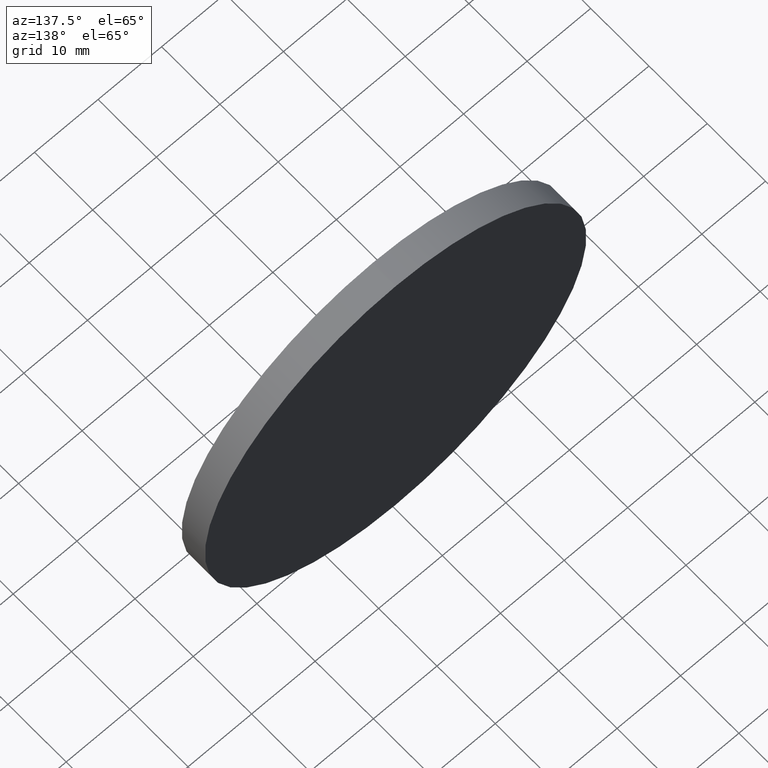
[diagram: clean part render]
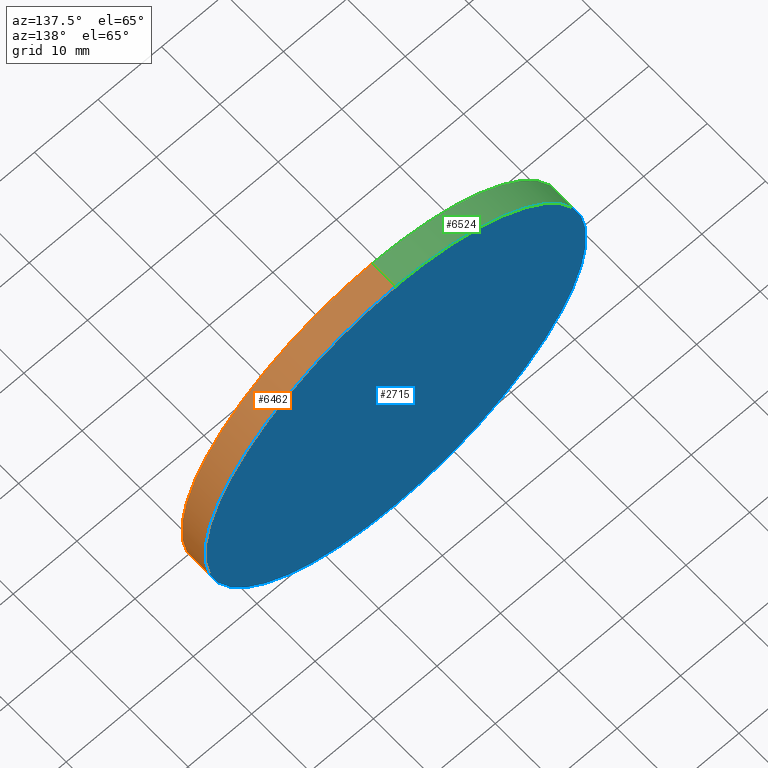
[diagram: same view with three faces highlighted in distinct colors, each labeled with its STEP entity id]
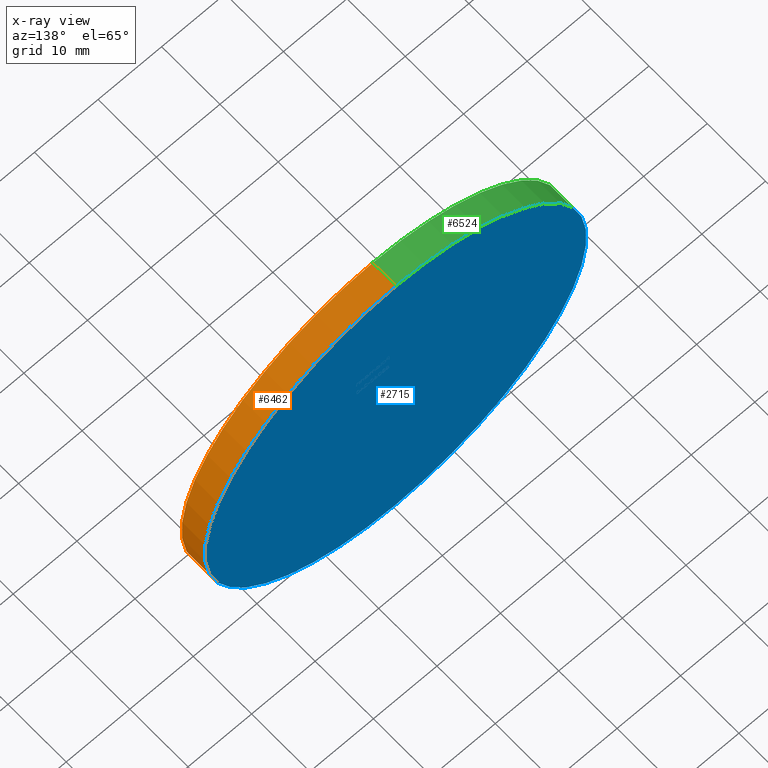
[diagram: x-ray of the same camera — body ghosted, the three highlighted faces saturated]
A machine part, auxiliary view with three faces highlighted in distinct colors.
The next image is the same camera in x-ray (body ghosted, the three faces saturated) — at least one of them is partly hidden behind the body in this view.
Their STEP definitions:

[orange] entity #6462 — the highlighted cylindrical surface (partial cylindrical patch) has radius 30 mm, axis along (-0, -1, -0).
#569 = CIRCLE ( 'NONE', #3895, 30.00000000000000000 ) ;
#644 = CARTESIAN_POINT ( 'NONE',  ( 0.000000000000000000, 2.000000000000000000, -30.00000000000000000 ) ) ;
#700 = VECTOR ( 'NONE', #786, 1000.000000000000000 ) ;
#719 = EDGE_CURVE ( 'NONE', #3265, #4205, #6534, .T. ) ;
#786 = DIRECTION ( 'NONE',  ( -0.000000000000000000, -1.000000000000000000, -0.000000000000000000 ) ) ;
#1074 = EDGE_CURVE ( 'NONE', #3265, #4392, #12571, .T. ) ;
#1540 = FACE_OUTER_BOUND ( 'NONE', #12253, .T. ) ;
#1952 = CARTESIAN_POINT ( 'NONE',  ( 3.673940397442059178E-15, 2.000000000000000000, 30.00000000000000000 ) ) ;
#2316 = CARTESIAN_POINT ( 'NONE',  ( 0.000000000000000000, 2.000000000000000000, 0.000000000000000000 ) ) ;
#2370 = LINE ( 'NONE', #644, #700 ) ;
#2438 = CARTESIAN_POINT ( 'NONE',  ( 0.000000000000000000, -2.000000000000000000, -30.00000000000000000 ) ) ;
#2491 = AXIS2_PLACEMENT_3D ( 'NONE', #2316, #9708, #5480 ) ;
#3265 = VERTEX_POINT ( 'NONE', #9702 ) ;
#3793 = DIRECTION ( 'NONE',  ( 0.000000000000000000, 0.000000000000000000, 1.000000000000000000 ) ) ;
#3895 = AXIS2_PLACEMENT_3D ( 'NONE', #10050, #7939, #3793 ) ;
#3897 = VECTOR ( 'NONE', #9262, 1000.000000000000000 ) ;
#4205 = VERTEX_POINT ( 'NONE', #12776 ) ;
#4335 = DIRECTION ( 'NONE',  ( 0.000000000000000000, 1.000000000000000000, 0.000000000000000000 ) ) ;
#4392 = VERTEX_POINT ( 'NONE', #12043 ) ;
#5290 = ORIENTED_EDGE ( 'NONE', *, *, #7449, .F. ) ;
#5412 = DIRECTION ( 'NONE',  ( 0.000000000000000000, 0.000000000000000000, 1.000000000000000000 ) ) ;
#5454 = EDGE_CURVE ( 'NONE', #4392, #11629, #569, .T. ) ;
#5480 = DIRECTION ( 'NONE',  ( 0.000000000000000000, 0.000000000000000000, -1.000000000000000000 ) ) ;
#6462 = ADVANCED_FACE ( 'NONE', ( #1540 ), #9887, .T. ) ;
#6534 = CIRCLE ( 'NONE', #9673, 30.00000000000000000 ) ;
#7305 = ORIENTED_EDGE ( 'NONE', *, *, #5454, .T. ) ;
#7449 = EDGE_CURVE ( 'NONE', #4205, #11629, #2370, .T. ) ;
#7542 = CARTESIAN_POINT ( 'NONE',  ( 0.000000000000000000, 2.000000000000000000, 0.000000000000000000 ) ) ;
#7939 = DIRECTION ( 'NONE',  ( 0.000000000000000000, 1.000000000000000000, 0.000000000000000000 ) ) ;
#9262 = DIRECTION ( 'NONE',  ( -0.000000000000000000, -1.000000000000000000, -0.000000000000000000 ) ) ;
#9673 = AXIS2_PLACEMENT_3D ( 'NONE', #7542, #4335, #5412 ) ;
#9702 = CARTESIAN_POINT ( 'NONE',  ( 3.673940397442059178E-15, 2.000000000000000000, 30.00000000000000000 ) ) ;
#9708 = DIRECTION ( 'NONE',  ( -0.000000000000000000, -1.000000000000000000, -0.000000000000000000 ) ) ;
#9887 = CYLINDRICAL_SURFACE ( 'NONE', #2491, 30.00000000000000000 ) ;
#10050 = CARTESIAN_POINT ( 'NONE',  ( 0.000000000000000000, -2.000000000000000000, 0.000000000000000000 ) ) ;
#11629 = VERTEX_POINT ( 'NONE', #2438 ) ;
#12043 = CARTESIAN_POINT ( 'NONE',  ( 3.673940397442059178E-15, -2.000000000000000000, 30.00000000000000000 ) ) ;
#12253 = EDGE_LOOP ( 'NONE', ( #13333, #12555, #7305, #5290 ) ) ;
#12555 = ORIENTED_EDGE ( 'NONE', *, *, #1074, .T. ) ;
#12571 = LINE ( 'NONE', #1952, #3897 ) ;
#12776 = CARTESIAN_POINT ( 'NONE',  ( 0.000000000000000000, 2.000000000000000000, -30.00000000000000000 ) ) ;
#13333 = ORIENTED_EDGE ( 'NONE', *, *, #719, .F. ) ;

[blue] entity #2715 — the highlighted planar face has unit normal (0, 1, 0).
#602 = ORIENTED_EDGE ( 'NONE', *, *, #11615, .T. ) ;
#719 = EDGE_CURVE ( 'NONE', #3265, #4205, #6534, .T. ) ;
#887 = DIRECTION ( 'NONE',  ( 0.000000000000000000, -0.000000000000000000, 1.000000000000000000 ) ) ;
#1539 = AXIS2_PLACEMENT_3D ( 'NONE', #10924, #10876, #7856 ) ;
#1964 = DIRECTION ( 'NONE',  ( 0.000000000000000000, 1.000000000000000000, 0.000000000000000000 ) ) ;
#2155 = CARTESIAN_POINT ( 'NONE',  ( 0.000000000000000000, 2.000000000000000000, 0.000000000000000000 ) ) ;
#2715 = ADVANCED_FACE ( 'NONE', ( #9630 ), #8393, .T. ) ;
#3265 = VERTEX_POINT ( 'NONE', #9702 ) ;
#3424 = CIRCLE ( 'NONE', #1539, 30.00000000000000000 ) ;
#4205 = VERTEX_POINT ( 'NONE', #12776 ) ;
#4335 = DIRECTION ( 'NONE',  ( 0.000000000000000000, 1.000000000000000000, 0.000000000000000000 ) ) ;
#5412 = DIRECTION ( 'NONE',  ( 0.000000000000000000, 0.000000000000000000, 1.000000000000000000 ) ) ;
#5913 = EDGE_LOOP ( 'NONE', ( #602, #12869 ) ) ;
#6534 = CIRCLE ( 'NONE', #9673, 30.00000000000000000 ) ;
#6544 = AXIS2_PLACEMENT_3D ( 'NONE', #2155, #1964, #887 ) ;
#7542 = CARTESIAN_POINT ( 'NONE',  ( 0.000000000000000000, 2.000000000000000000, 0.000000000000000000 ) ) ;
#7856 = DIRECTION ( 'NONE',  ( 0.000000000000000000, 0.000000000000000000, 1.000000000000000000 ) ) ;
#8393 = PLANE ( 'NONE',  #6544 ) ;
#9630 = FACE_OUTER_BOUND ( 'NONE', #5913, .T. ) ;
#9673 = AXIS2_PLACEMENT_3D ( 'NONE', #7542, #4335, #5412 ) ;
#9702 = CARTESIAN_POINT ( 'NONE',  ( 3.673940397442059178E-15, 2.000000000000000000, 30.00000000000000000 ) ) ;
#10876 = DIRECTION ( 'NONE',  ( 0.000000000000000000, 1.000000000000000000, 0.000000000000000000 ) ) ;
#10924 = CARTESIAN_POINT ( 'NONE',  ( 0.000000000000000000, 2.000000000000000000, 0.000000000000000000 ) ) ;
#11615 = EDGE_CURVE ( 'NONE', #4205, #3265, #3424, .T. ) ;
#12776 = CARTESIAN_POINT ( 'NONE',  ( 0.000000000000000000, 2.000000000000000000, -30.00000000000000000 ) ) ;
#12869 = ORIENTED_EDGE ( 'NONE', *, *, #719, .T. ) ;

[green] entity #6524 — the highlighted cylindrical surface (partial cylindrical patch) has radius 30 mm, axis along (-0, -1, -0).
#644 = CARTESIAN_POINT ( 'NONE',  ( 0.000000000000000000, 2.000000000000000000, -30.00000000000000000 ) ) ;
#700 = VECTOR ( 'NONE', #786, 1000.000000000000000 ) ;
#786 = DIRECTION ( 'NONE',  ( -0.000000000000000000, -1.000000000000000000, -0.000000000000000000 ) ) ;
#1074 = EDGE_CURVE ( 'NONE', #3265, #4392, #12571, .T. ) ;
#1193 = DIRECTION ( 'NONE',  ( -0.000000000000000000, -1.000000000000000000, -0.000000000000000000 ) ) ;
#1250 = AXIS2_PLACEMENT_3D ( 'NONE', #10748, #1193, #8515 ) ;
#1539 = AXIS2_PLACEMENT_3D ( 'NONE', #10924, #10876, #7856 ) ;
#1603 = ORIENTED_EDGE ( 'NONE', *, *, #1074, .F. ) ;
#1952 = CARTESIAN_POINT ( 'NONE',  ( 3.673940397442059178E-15, 2.000000000000000000, 30.00000000000000000 ) ) ;
#2370 = LINE ( 'NONE', #644, #700 ) ;
#2438 = CARTESIAN_POINT ( 'NONE',  ( 0.000000000000000000, -2.000000000000000000, -30.00000000000000000 ) ) ;
#2959 = EDGE_LOOP ( 'NONE', ( #1603, #5618, #7987, #11664 ) ) ;
#3190 = DIRECTION ( 'NONE',  ( 0.000000000000000000, 0.000000000000000000, 1.000000000000000000 ) ) ;
#3265 = VERTEX_POINT ( 'NONE', #9702 ) ;
#3369 = CARTESIAN_POINT ( 'NONE',  ( 0.000000000000000000, -2.000000000000000000, 0.000000000000000000 ) ) ;
#3424 = CIRCLE ( 'NONE', #1539, 30.00000000000000000 ) ;
#3897 = VECTOR ( 'NONE', #9262, 1000.000000000000000 ) ;
#4205 = VERTEX_POINT ( 'NONE', #12776 ) ;
#4392 = VERTEX_POINT ( 'NONE', #12043 ) ;
#5618 = ORIENTED_EDGE ( 'NONE', *, *, #11615, .F. ) ;
#5945 = EDGE_CURVE ( 'NONE', #11629, #4392, #6818, .T. ) ;
#6524 = ADVANCED_FACE ( 'NONE', ( #12681 ), #11543, .T. ) ;
#6818 = CIRCLE ( 'NONE', #10890, 30.00000000000000000 ) ;
#7449 = EDGE_CURVE ( 'NONE', #4205, #11629, #2370, .T. ) ;
#7856 = DIRECTION ( 'NONE',  ( 0.000000000000000000, 0.000000000000000000, 1.000000000000000000 ) ) ;
#7987 = ORIENTED_EDGE ( 'NONE', *, *, #7449, .T. ) ;
#8515 = DIRECTION ( 'NONE',  ( 0.000000000000000000, 0.000000000000000000, -1.000000000000000000 ) ) ;
#9262 = DIRECTION ( 'NONE',  ( -0.000000000000000000, -1.000000000000000000, -0.000000000000000000 ) ) ;
#9702 = CARTESIAN_POINT ( 'NONE',  ( 3.673940397442059178E-15, 2.000000000000000000, 30.00000000000000000 ) ) ;
#10640 = DIRECTION ( 'NONE',  ( 0.000000000000000000, 1.000000000000000000, 0.000000000000000000 ) ) ;
#10748 = CARTESIAN_POINT ( 'NONE',  ( 0.000000000000000000, 2.000000000000000000, 0.000000000000000000 ) ) ;
#10876 = DIRECTION ( 'NONE',  ( 0.000000000000000000, 1.000000000000000000, 0.000000000000000000 ) ) ;
#10890 = AXIS2_PLACEMENT_3D ( 'NONE', #3369, #10640, #3190 ) ;
#10924 = CARTESIAN_POINT ( 'NONE',  ( 0.000000000000000000, 2.000000000000000000, 0.000000000000000000 ) ) ;
#11543 = CYLINDRICAL_SURFACE ( 'NONE', #1250, 30.00000000000000000 ) ;
#11615 = EDGE_CURVE ( 'NONE', #4205, #3265, #3424, .T. ) ;
#11629 = VERTEX_POINT ( 'NONE', #2438 ) ;
#11664 = ORIENTED_EDGE ( 'NONE', *, *, #5945, .T. ) ;
#12043 = CARTESIAN_POINT ( 'NONE',  ( 3.673940397442059178E-15, -2.000000000000000000, 30.00000000000000000 ) ) ;
#12571 = LINE ( 'NONE', #1952, #3897 ) ;
#12681 = FACE_OUTER_BOUND ( 'NONE', #2959, .T. ) ;
#12776 = CARTESIAN_POINT ( 'NONE',  ( 0.000000000000000000, 2.000000000000000000, -30.00000000000000000 ) ) ;